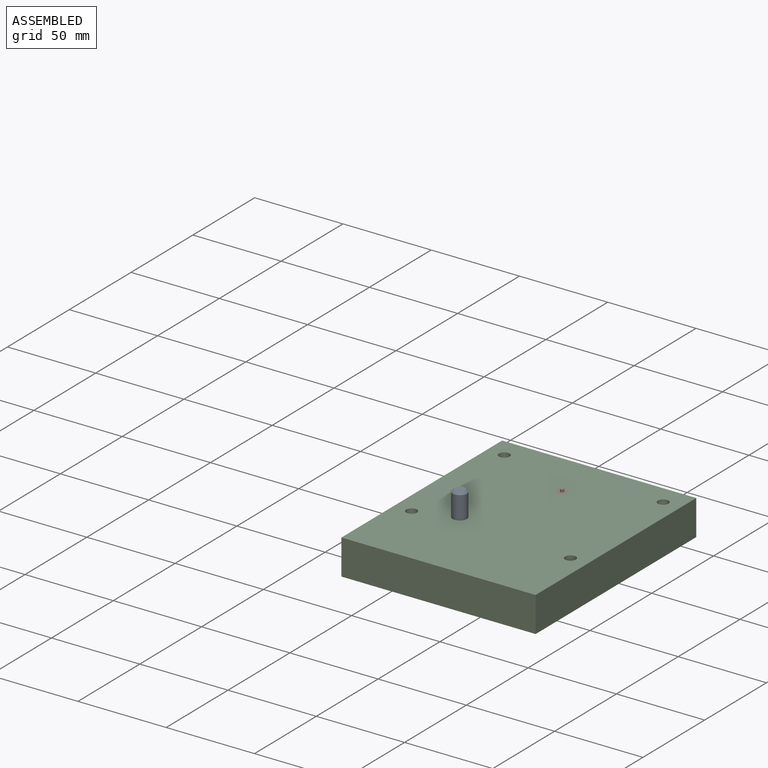
[diagram: assembled view]
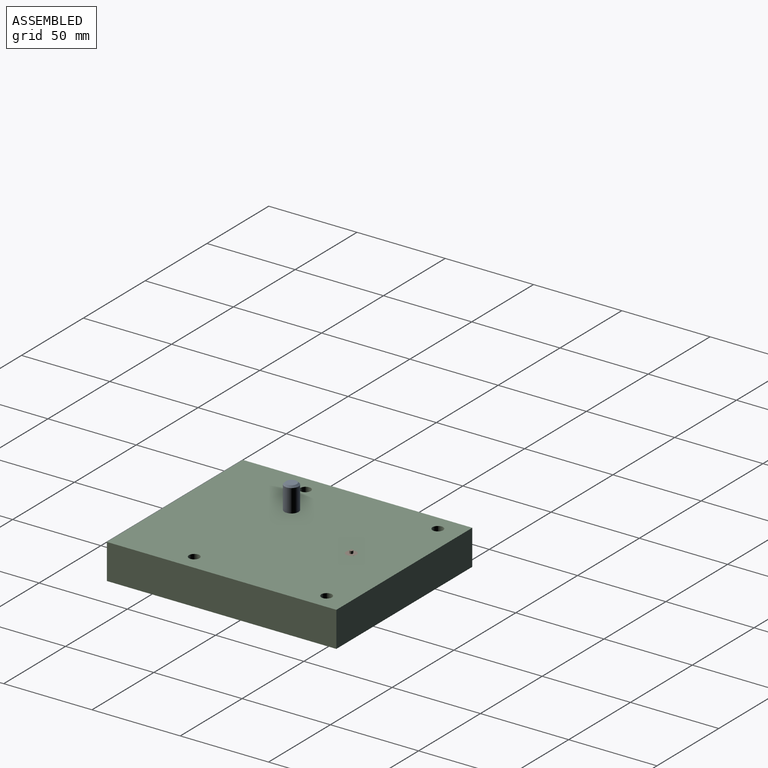
[diagram: assembled view, second angle]
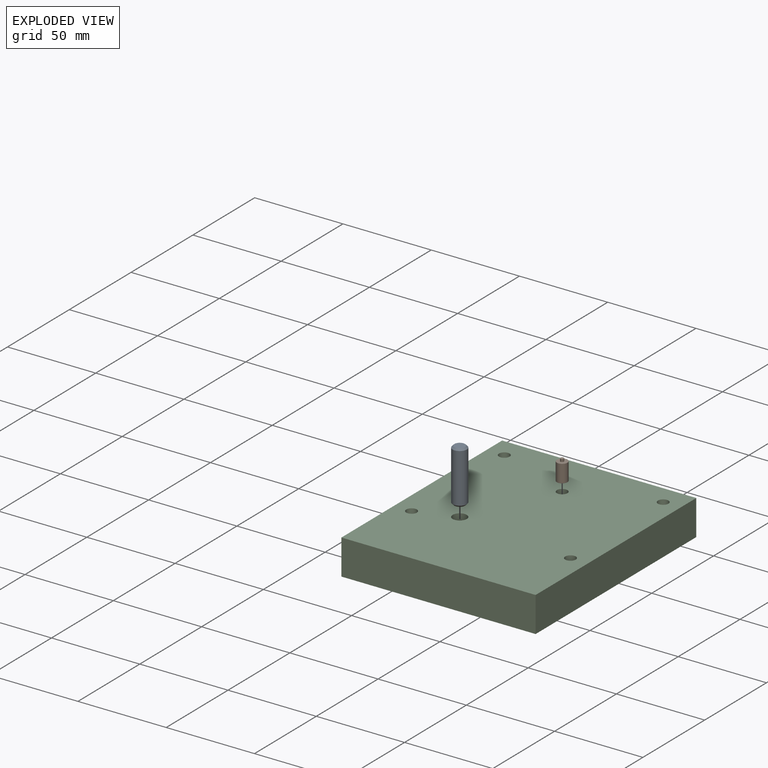
[diagram: exploded view]
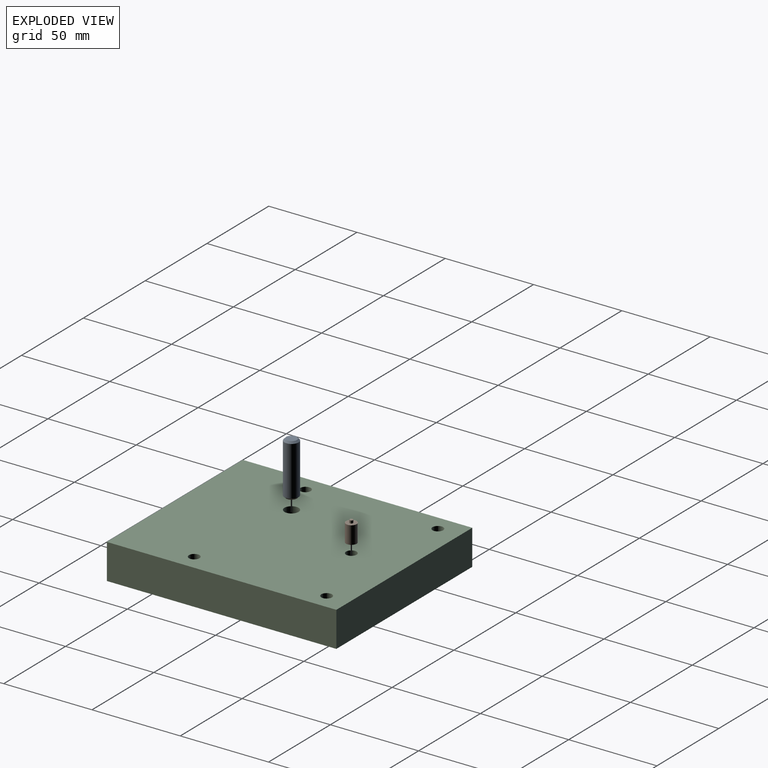
[diagram: exploded view, second angle]
ASSEMBLY  parts=3 mates=3
PART A: 5 faces, bbox 8x8x30 mm
  f0: cylinder r=4mm len=28mm, axis (0,0,-1), area 703.7mm2, adj f3,f4
  f1: plane 6x6mm, normal (0,0,1), area 28.3mm2, adj f4
  f2: plane 6x6mm, normal (0,0,-1), area 28.3mm2, adj f3
  f3: cone r=4mm half-angle=45deg, axis (0,0,1), area 31.1mm2, adj f0,f2
  f4: cone r=3mm half-angle=45deg, axis (0,0,-1), area 31.1mm2, adj f0,f1
PART B: 5 faces, bbox 6x6x11.5 mm
  f0: cylinder r=3mm len=10mm, axis (0,0,-1), area 188.5mm2, adj f1,f2
  f1: plane 6x6mm, normal (0,0,1), area 25.3mm2, adj f0,f3
  f2: plane 6x6mm, normal (0,0,-1), area 28.3mm2, adj f0
  f3: cylinder r=0.98mm len=1.96mm, axis (0,0,-1), area 9.2mm2, adj f1,f4
  f4: plane 1.96x1.96mm, normal (0,0,1), area 3mm2, adj f3
PART C: 14 faces, bbox 110x130x20 mm
  f0: plane 130x110mm, normal (0,0,1), area 14108.4mm2, adj f2,f3,f4,f5,f6,f8,f10,f11
  f1: plane 130x110mm, normal (0,0,-1), area 14186.9mm2, adj f2,f3,f4,f5,f10,f11,f12,f13
  f2: plane 130x20mm, normal (1,0,0), area 2600mm2, adj f0,f1,f3,f5
  f3: plane 110x20mm, normal (0,1,0), area 2200mm2, adj f0,f1,f2,f4
  f4: plane 130x20mm, normal (-1,0,0), area 2600mm2, adj f0,f1,f3,f5
  f5: plane 110x20mm, normal (0,-1,0), area 2200mm2, adj f0,f1,f2,f4
  f6: cylinder r=3mm len=10mm, axis (0,0,1), area 188.5mm2, adj f0,f7
  f7: plane 6x6mm, normal (0,0,1), area 28.3mm2, adj f6
  f8: cylinder r=4mm len=15mm, axis (0,0,1), area 377mm2, adj f0,f9
  f9: plane 8x8mm, normal (0,0,1), area 50.3mm2, adj f8
  f10: cylinder r=3mm len=20mm, axis (0,0,1), area 377mm2, adj f0,f1
  f11: cylinder r=3mm len=20mm, axis (0,0,1), area 377mm2, adj f0,f1
  f12: cylinder r=3mm len=20mm, axis (0,0,1), area 377mm2, adj f0,f1
  f13: cylinder r=3mm len=20mm, axis (0,0,1), area 377mm2, adj f0,f1
PLACE A t=(56.8,27.76,-21.43)mm
PLACE B t=(79.8,77.76,-15.43)mm
PLACE C t=(79.8,42.76,-25.43)mm
MATE slider B.f0 <-> C.f6  axis (0,0,-1) through (79.8,77.76,-15.43)mm
MATE fastened C.f8 <-> A.f0  axis (0,0,1) through (56.8,27.76,-20.43)mm
MATE fastened B.f0 <-> C.f6  axis (0,0,-1) through (79.8,77.76,-15.43)mm
